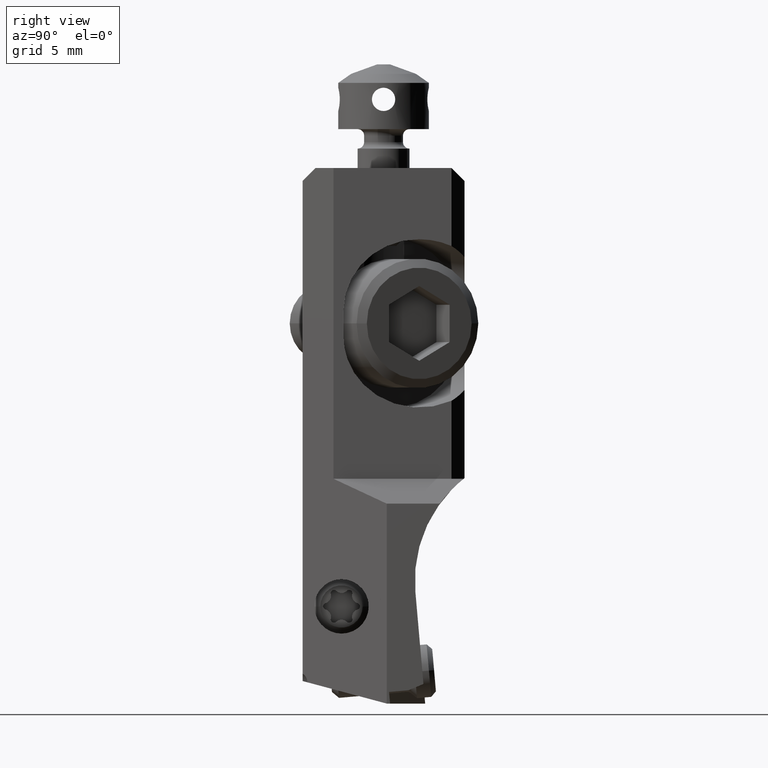
[diagram: clean part render]
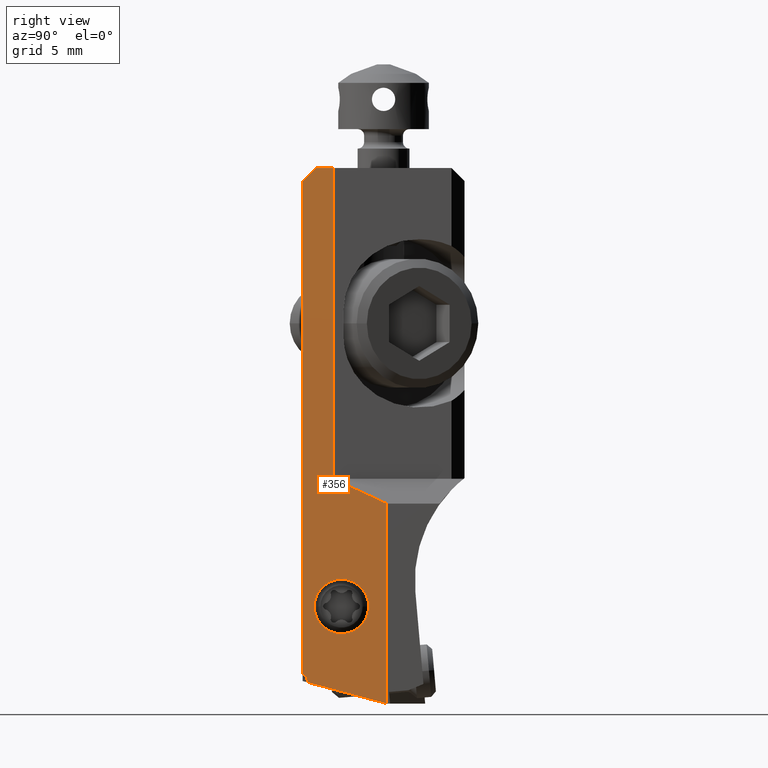
[diagram: same view with one face highlighted and labeled with its STEP entity id]
A machine part, right view. The second image highlights one B-rep face of the part: STEP entity #356.
In plain terms, the highlighted planar face has unit normal (0.9063, -0.4226, 0).
Its self-contained STEP definition (entity closure, byte-faithful):
#136=FACE_BOUND('',#679,.T.);
#137=FACE_BOUND('',#680,.T.);
#356=ADVANCED_FACE('',(#136,#137),#496,.T.);
#496=PLANE('',#2713);
#679=EDGE_LOOP('',(#1204,#1205,#1206,#1207,#1208,#1209,#1210,#1211));
#680=EDGE_LOOP('',(#1212,#1213));
#829=LINE('',#3837,#1008);
#835=LINE('',#3860,#1014);
#836=LINE('',#3862,#1015);
#837=LINE('',#3864,#1016);
#838=LINE('',#3866,#1017);
#839=LINE('',#3868,#1018);
#840=LINE('',#3870,#1019);
#1008=VECTOR('',#3041,1.);
#1014=VECTOR('',#3065,1.);
#1015=VECTOR('',#3066,1.);
#1016=VECTOR('',#3067,1.);
#1017=VECTOR('',#3068,1.);
#1018=VECTOR('',#3069,1.);
#1019=VECTOR('',#3070,1.);
#1204=ORIENTED_EDGE('',*,*,#2202,.T.);
#1205=ORIENTED_EDGE('',*,*,#2203,.T.);
#1206=ORIENTED_EDGE('',*,*,#2204,.T.);
#1207=ORIENTED_EDGE('',*,*,#2205,.T.);
#1208=ORIENTED_EDGE('',*,*,#2206,.T.);
#1209=ORIENTED_EDGE('',*,*,#2207,.T.);
#1210=ORIENTED_EDGE('',*,*,#2190,.F.);
#1211=ORIENTED_EDGE('',*,*,#2201,.F.);
#1212=ORIENTED_EDGE('',*,*,#2208,.T.);
#1213=ORIENTED_EDGE('',*,*,#2209,.T.);
#1946=VERTEX_POINT('',#3836);
#1947=VERTEX_POINT('',#3838);
#1954=VERTEX_POINT('',#3857);
#1955=VERTEX_POINT('',#3861);
#1956=VERTEX_POINT('',#3863);
#1957=VERTEX_POINT('',#3865);
#1958=VERTEX_POINT('',#3867);
#1959=VERTEX_POINT('',#3869);
#1960=VERTEX_POINT('',#3872);
#1961=VERTEX_POINT('',#3873);
#2190=EDGE_CURVE('',#1946,#1947,#829,.T.);
#2201=EDGE_CURVE('',#1954,#1946,#2572,.T.);
#2202=EDGE_CURVE('',#1954,#1955,#835,.T.);
#2203=EDGE_CURVE('',#1955,#1956,#836,.T.);
#2204=EDGE_CURVE('',#1956,#1957,#837,.T.);
#2205=EDGE_CURVE('',#1957,#1958,#838,.T.);
#2206=EDGE_CURVE('',#1958,#1959,#839,.T.);
#2207=EDGE_CURVE('',#1959,#1947,#840,.T.);
#2208=EDGE_CURVE('',#1960,#1961,#2573,.T.);
#2209=EDGE_CURVE('',#1961,#1960,#2574,.T.);
#2572=ELLIPSE('',#2709,2.96905011093952,1.249999999977);
#2573=ELLIPSE('',#2711,2.31709362982126,2.1);
#2574=ELLIPSE('',#2712,2.31709362982126,2.1);
#2709=AXIS2_PLACEMENT_3D('',#3858,#3061,#3062);
#2711=AXIS2_PLACEMENT_3D('',#3871,#3071,#3072);
#2712=AXIS2_PLACEMENT_3D('',#3874,#3073,#3074);
#2713=AXIS2_PLACEMENT_3D('',#3875,#3075,#3076);
#3041=DIRECTION('',(1.169454581323E-13,0.,1.));
#3061=DIRECTION('',(0.906307787036641,-0.422618261740719,-6.93889390390723E-18));
#3062=DIRECTION('',(-0.42066280586748,-0.902114298383728,-0.0960864007616714));
#3065=DIRECTION('',(0.410682057590806,0.880710514630013,-0.235985671160603));
#3066=DIRECTION('',(0.,1.599325452341E-14,1.));
#3067=DIRECTION('',(-0.389281620635004,-0.834817129479008,0.389281620635004));
#3068=DIRECTION('',(0.,0.,1.));
#3069=DIRECTION('',(-0.422618261740681,-0.906307787036659,0.));
#3070=DIRECTION('',(-0.313145613014803,-0.671542934237807,-0.671542934237907));
#3071=DIRECTION('',(-0.906307787036641,0.422618261740719,0.));
#3072=DIRECTION('',(0.422618261740719,0.906307787036641,0.));
#3073=DIRECTION('',(-0.906307787036641,0.422618261740719,0.));
#3074=DIRECTION('',(0.422618261740719,0.906307787036641,0.));
#3075=DIRECTION('',(0.906307787036641,-0.422618261740719,0.));
#3076=DIRECTION('',(0.422618261740719,0.906307787036641,0.));
#3836=CARTESIAN_POINT('',(-1.11099977800992,1.25633724705351E-13,-39.0404996544919));
#3837=CARTESIAN_POINT('',(-1.110999778012,2.512064630385E-13,-39.04049965447));
#3838=CARTESIAN_POINT('',(-1.110999778007,1.078766705594E-13,-1.));
#3857=CARTESIAN_POINT('',(-0.946515076455214,0.352738580806068,-39.7114551077659));
#3858=CARTESIAN_POINT('',(-2.19424045327,-2.32301712467704,-39.8698905222577));
#3860=CARTESIAN_POINT('',(-0.9465150764403,0.3527385808466,-39.71145510778));
#3861=CARTESIAN_POINT('',(1.92,6.5,-41.3586088407));
#3862=CARTESIAN_POINT('',(1.92,6.5,-41.3586088407));
#3863=CARTESIAN_POINT('',(1.92,6.5,-25.92));
#3864=CARTESIAN_POINT('',(1.92,6.5,-25.92));
#3865=CARTESIAN_POINT('',(-3.289960896306E-14,2.382546712622,-24.));
#3866=CARTESIAN_POINT('',(-3.289960896306E-14,2.382546712622,-24.));
#3867=CARTESIAN_POINT('',(-3.228898629951E-14,2.382546712622,0.));
#3868=CARTESIAN_POINT('',(-3.228898629951E-14,2.382546712622,0.));
#3869=CARTESIAN_POINT('',(-0.6446921198526,1.,0.));
#3870=CARTESIAN_POINT('',(-0.6446921198526,1.,0.));
#3871=CARTESIAN_POINT('',(0.287923196457242,3.,-33.8586088407));
#3872=CARTESIAN_POINT('',(1.2671692785829,5.1,-33.8586088407));
#3873=CARTESIAN_POINT('',(-0.691322885668305,0.9,-33.8586088407));
#3874=CARTESIAN_POINT('',(0.287923196457242,3.,-33.8586088407));
#3875=CARTESIAN_POINT('',(0.404500110996,3.25,-20.67930442035));